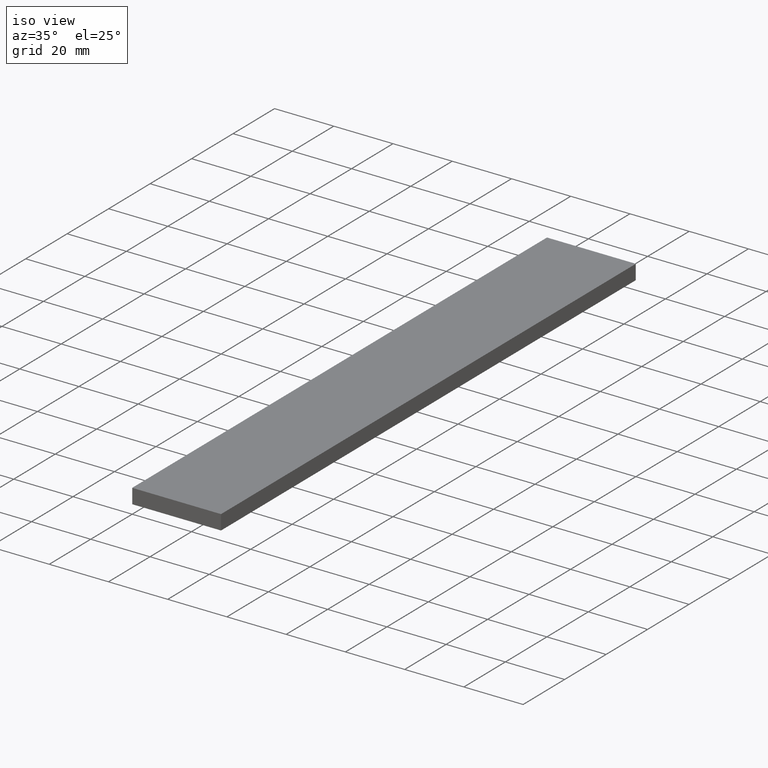
[diagram: clean part render]
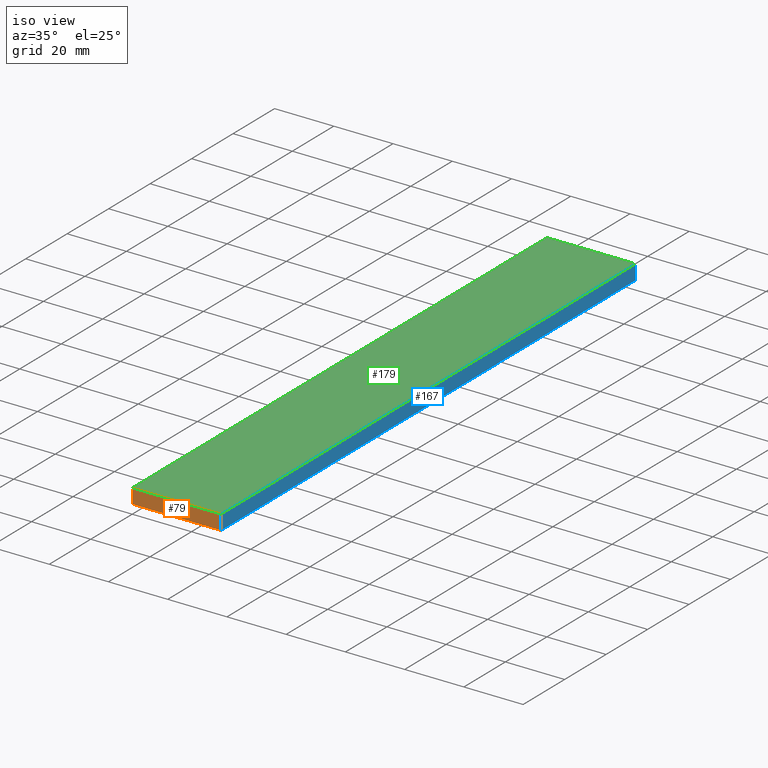
[diagram: same view with three faces highlighted in distinct colors, each labeled with its STEP entity id]
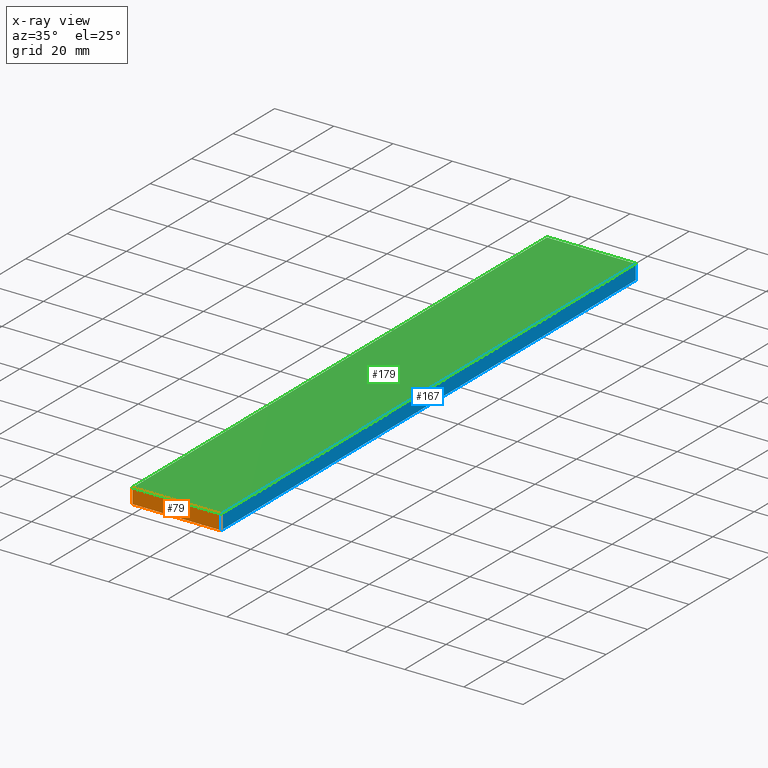
[diagram: x-ray of the same camera — body ghosted, the three highlighted faces saturated]
A machine part, iso view with three faces highlighted in distinct colors.
The next image is the same camera in x-ray (body ghosted, the three faces saturated) — at least one of them is partly hidden behind the body in this view.
Their STEP definitions:

[orange] entity #79 — the highlighted face is a freeform B-spline surface patch.
#44=CARTESIAN_POINT('',(-1.498499941854179,0.0,5.249749990309030));
#45=CARTESIAN_POINT('',(31.498500746516889,0.0,5.249749990309030));
#46=CARTESIAN_POINT('',(-1.498499941854179,0.0,-0.249750124419480));
#47=CARTESIAN_POINT('',(31.498500746516889,0.0,-0.249750124419480));
#48=B_SPLINE_SURFACE_WITH_KNOTS('',1,1,((#44,#46),(#45,#47)),.UNSPECIFIED.,.F.,.F.,.U.,(2,2),(2,2),(0.0,32.997000688371067),(0.0,5.499500114728510),.UNSPECIFIED.);
#49=CARTESIAN_POINT('',(0.0,0.0,5.0));
#50=VERTEX_POINT('',#49);
#51=CARTESIAN_POINT('',(30.0,0.0,5.0));
#52=VERTEX_POINT('',#51);
#53=CARTESIAN_POINT('',(0.0,0.0,5.0));
#54=CARTESIAN_POINT('',(30.0,0.0,5.0));
#55=QUASI_UNIFORM_CURVE('',1,(#53,#54),.UNSPECIFIED.,.F.,.U.);
#56=EDGE_CURVE('',#50,#52,#55,.T.);
#57=ORIENTED_EDGE('',*,*,#56,.F.);
#58=CARTESIAN_POINT('',(0.0,0.0,0.0));
#59=VERTEX_POINT('',#58);
#60=CARTESIAN_POINT('',(0.0,0.0,0.0));
#61=CARTESIAN_POINT('',(0.0,0.0,5.0));
#62=QUASI_UNIFORM_CURVE('',1,(#60,#61),.UNSPECIFIED.,.F.,.U.);
#63=EDGE_CURVE('',#59,#50,#62,.T.);
#64=ORIENTED_EDGE('',*,*,#63,.F.);
#65=CARTESIAN_POINT('',(30.0,0.0,0.0));
#66=VERTEX_POINT('',#65);
#67=CARTESIAN_POINT('',(30.0,0.0,0.0));
#68=CARTESIAN_POINT('',(0.0,0.0,0.0));
#69=QUASI_UNIFORM_CURVE('',1,(#67,#68),.UNSPECIFIED.,.F.,.U.);
#70=EDGE_CURVE('',#66,#59,#69,.T.);
#71=ORIENTED_EDGE('',*,*,#70,.F.);
#72=CARTESIAN_POINT('',(30.0,0.0,5.0));
#73=CARTESIAN_POINT('',(30.0,0.0,0.0));
#74=QUASI_UNIFORM_CURVE('',1,(#72,#73),.UNSPECIFIED.,.F.,.U.);
#75=EDGE_CURVE('',#52,#66,#74,.T.);
#76=ORIENTED_EDGE('',*,*,#75,.F.);
#77=EDGE_LOOP('',(#57,#64,#71,#76));
#78=FACE_OUTER_BOUND('',#77,.T.);
#79=ADVANCED_FACE('',(#78),#48,.F.);

[blue] entity #167 — the highlighted face is a freeform B-spline surface patch.
#51=CARTESIAN_POINT('',(30.0,0.0,5.0));
#52=VERTEX_POINT('',#51);
#65=CARTESIAN_POINT('',(30.0,0.0,0.0));
#66=VERTEX_POINT('',#65);
#72=CARTESIAN_POINT('',(30.0,0.0,5.0));
#73=CARTESIAN_POINT('',(30.0,0.0,0.0));
#74=QUASI_UNIFORM_CURVE('',1,(#72,#73),.UNSPECIFIED.,.F.,.U.);
#75=EDGE_CURVE('',#52,#66,#74,.T.);
#87=CARTESIAN_POINT('',(30.0,200.0,5.0));
#88=VERTEX_POINT('',#87);
#94=CARTESIAN_POINT('',(30.0,200.0,0.0));
#95=VERTEX_POINT('',#94);
#96=CARTESIAN_POINT('',(30.0,200.0,5.0));
#97=CARTESIAN_POINT('',(30.0,200.0,0.0));
#98=QUASI_UNIFORM_CURVE('',1,(#96,#97),.UNSPECIFIED.,.F.,.U.);
#99=EDGE_CURVE('',#88,#95,#98,.T.);
#144=CARTESIAN_POINT('',(30.0,200.0,0.0));
#145=CARTESIAN_POINT('',(30.0,0.0,0.0));
#146=QUASI_UNIFORM_CURVE('',1,(#144,#145),.UNSPECIFIED.,.F.,.U.);
#147=EDGE_CURVE('',#95,#66,#146,.T.);
#152=CARTESIAN_POINT('',(30.0,-9.989999612361171,-0.249749990309030));
#153=CARTESIAN_POINT('',(30.0,-9.989999612361171,5.249750124419480));
#154=CARTESIAN_POINT('',(30.0,209.990004976779200,-0.249749990309030));
#155=CARTESIAN_POINT('',(30.0,209.990004976779200,5.249750124419480));
#156=B_SPLINE_SURFACE_WITH_KNOTS('',1,1,((#152,#154),(#153,#155)),.UNSPECIFIED.,.F.,.F.,.U.,(2,2),(2,2),(0.0,5.499500114728509),(0.0,219.980004589140410),.UNSPECIFIED.);
#157=ORIENTED_EDGE('',*,*,#75,.T.);
#158=ORIENTED_EDGE('',*,*,#147,.F.);
#159=ORIENTED_EDGE('',*,*,#99,.F.);
#160=CARTESIAN_POINT('',(30.0,200.0,5.0));
#161=CARTESIAN_POINT('',(30.0,0.0,5.0));
#162=QUASI_UNIFORM_CURVE('',1,(#160,#161),.UNSPECIFIED.,.F.,.U.);
#163=EDGE_CURVE('',#88,#52,#162,.T.);
#164=ORIENTED_EDGE('',*,*,#163,.T.);
#165=EDGE_LOOP('',(#157,#158,#159,#164));
#166=FACE_OUTER_BOUND('',#165,.T.);
#167=ADVANCED_FACE('',(#166),#156,.F.);

[green] entity #179 — the highlighted face is a freeform B-spline surface patch.
#49=CARTESIAN_POINT('',(0.0,0.0,5.0));
#50=VERTEX_POINT('',#49);
#51=CARTESIAN_POINT('',(30.0,0.0,5.0));
#52=VERTEX_POINT('',#51);
#53=CARTESIAN_POINT('',(0.0,0.0,5.0));
#54=CARTESIAN_POINT('',(30.0,0.0,5.0));
#55=QUASI_UNIFORM_CURVE('',1,(#53,#54),.UNSPECIFIED.,.F.,.U.);
#56=EDGE_CURVE('',#50,#52,#55,.T.);
#85=CARTESIAN_POINT('',(0.0,200.0,5.0));
#86=VERTEX_POINT('',#85);
#87=CARTESIAN_POINT('',(30.0,200.0,5.0));
#88=VERTEX_POINT('',#87);
#89=CARTESIAN_POINT('',(0.0,200.0,5.0));
#90=CARTESIAN_POINT('',(30.0,200.0,5.0));
#91=QUASI_UNIFORM_CURVE('',1,(#89,#90),.UNSPECIFIED.,.F.,.U.);
#92=EDGE_CURVE('',#86,#88,#91,.T.);
#122=CARTESIAN_POINT('',(0.0,200.0,5.0));
#123=CARTESIAN_POINT('',(0.0,0.0,5.0));
#124=QUASI_UNIFORM_CURVE('',1,(#122,#123),.UNSPECIFIED.,.F.,.U.);
#125=EDGE_CURVE('',#86,#50,#124,.T.);
#160=CARTESIAN_POINT('',(30.0,200.0,5.0));
#161=CARTESIAN_POINT('',(30.0,0.0,5.0));
#162=QUASI_UNIFORM_CURVE('',1,(#160,#161),.UNSPECIFIED.,.F.,.U.);
#163=EDGE_CURVE('',#88,#52,#162,.T.);
#168=CARTESIAN_POINT('',(31.498499941854181,-9.989999612361194,5.0));
#169=CARTESIAN_POINT('',(-1.498500746516883,-9.989999612361194,5.0));
#170=CARTESIAN_POINT('',(31.498499941854181,209.990004976779200,5.0));
#171=CARTESIAN_POINT('',(-1.498500746516883,209.990004976779200,5.0));
#172=B_SPLINE_SURFACE_WITH_KNOTS('',1,1,((#168,#170),(#169,#171)),.UNSPECIFIED.,.F.,.F.,.U.,(2,2),(2,2),(0.0,32.997000688371060),(0.0,219.980004589140410),.UNSPECIFIED.);
#173=ORIENTED_EDGE('',*,*,#56,.T.);
#174=ORIENTED_EDGE('',*,*,#163,.F.);
#175=ORIENTED_EDGE('',*,*,#92,.F.);
#176=ORIENTED_EDGE('',*,*,#125,.T.);
#177=EDGE_LOOP('',(#173,#174,#175,#176));
#178=FACE_OUTER_BOUND('',#177,.T.);
#179=ADVANCED_FACE('',(#178),#172,.F.);